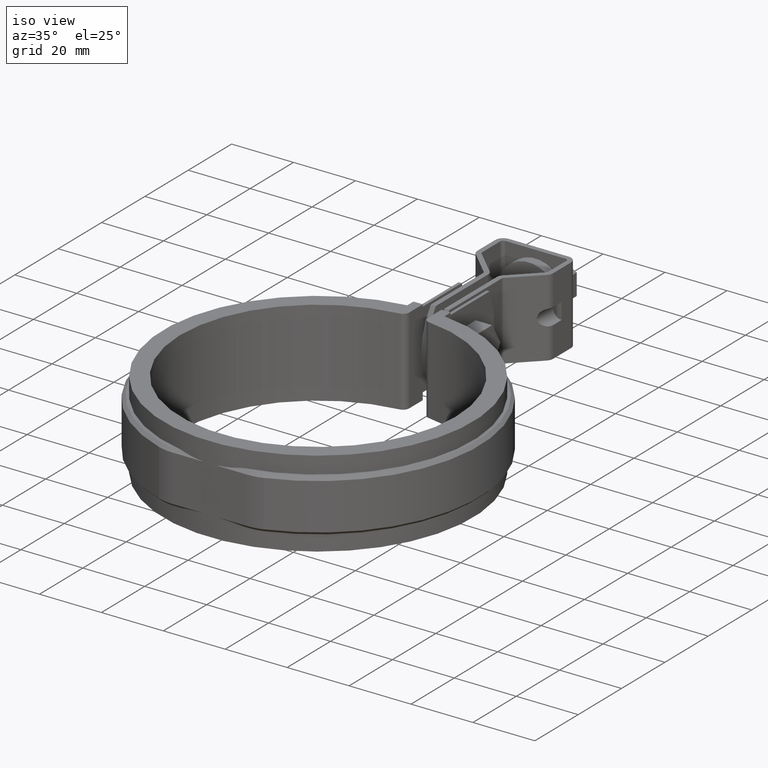
[diagram: clean part render]
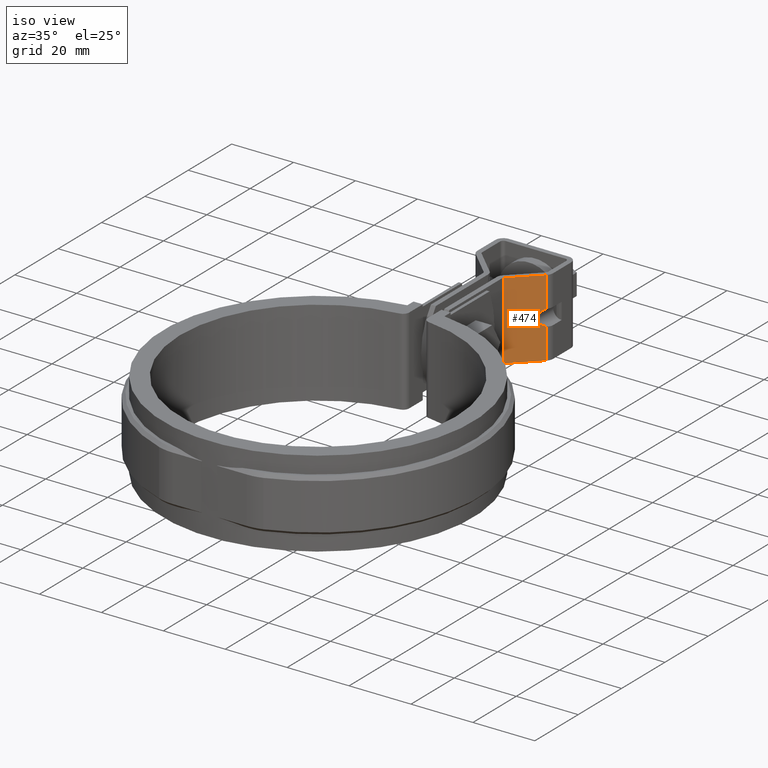
[diagram: same view with one face highlighted and labeled with its STEP entity id]
A machine part, iso view. The second image highlights one B-rep face of the part: STEP entity #474.
In plain terms, the highlighted planar face has unit normal (0.6983, -0.7158, 0).
Its self-contained STEP definition (entity closure, byte-faithful):
#474 = ADVANCED_FACE( '', ( #863 ), #864, .T. );
#863 = FACE_OUTER_BOUND( '', #1879, .T. );
#864 = PLANE( '', #1880 );
#1879 = EDGE_LOOP( '', ( #3960, #3961, #3962, #3963, #3964, #3965 ) );
#1880 = AXIS2_PLACEMENT_3D( '', #3966, #3967, #3968 );
#3960 = ORIENTED_EDGE( '', *, *, #4796, .T. );
#3961 = ORIENTED_EDGE( '', *, *, #4802, .F. );
#3962 = ORIENTED_EDGE( '', *, *, #4709, .T. );
#3963 = ORIENTED_EDGE( '', *, *, #4728, .F. );
#3964 = ORIENTED_EDGE( '', *, *, #4688, .F. );
#3965 = ORIENTED_EDGE( '', *, *, #4803, .F. );
#3966 = CARTESIAN_POINT( '', ( 3.90167616437032, 81.6516822966422, 12.4999999943156 ) );
#3967 = DIRECTION( '', ( 0.698323835531320, -0.715781964517705, 3.41092840061489E-011 ) );
#3968 = DIRECTION( '', ( -0.715781964517705, -0.698323835531320, 3.26011656361547E-011 ) );
#4688 = EDGE_CURVE( '', #5506, #5508, #5509, .T. );
#4709 = EDGE_CURVE( '', #5546, #5547, #5548, .T. );
#4728 = EDGE_CURVE( '', #5508, #5547, #5579, .T. );
#4796 = EDGE_CURVE( '', #5686, #5684, #5687, .T. );
#4802 = EDGE_CURVE( '', #5546, #5684, #5694, .T. );
#4803 = EDGE_CURVE( '', #5686, #5506, #5695, .T. );
#5506 = VERTEX_POINT( '', #8355 );
#5508 = VERTEX_POINT( '', #8357 );
#5509 = LINE( '', #8358, #8359 );
#5546 = VERTEX_POINT( '', #8407 );
#5547 = VERTEX_POINT( '', #8408 );
#5548 = ELLIPSE( '', #8409, 3.70224472166266, 2.64999999999997 );
#5579 = LINE( '', #8475, #8476 );
#5684 = VERTEX_POINT( '', #8649 );
#5686 = VERTEX_POINT( '', #8651 );
#5687 = LINE( '', #8652, #8653 );
#5694 = LINE( '', #8663, #8664 );
#5695 = LINE( '', #8665, #8666 );
#8355 = CARTESIAN_POINT( '', ( 3.30167616437099, 81.0663164700519, 12.4999999943429 ) );
#8357 = CARTESIAN_POINT( '', ( 11.4656419722716, 89.0311607923885, 12.4999999939711 ) );
#8358 = CARTESIAN_POINT( '', ( 3.90167616437032, 81.6516822966422, 12.4999999943156 ) );
#8359 = VECTOR( '', #9407, 1000.00000000000 );
#8407 = CARTESIAN_POINT( '', ( 11.4656419722789, 89.0311607916792, -2.53126105232718 ) );
#8408 = CARTESIAN_POINT( '', ( 11.4656419722765, 89.0311607919181, 2.53126104026929 ) );
#8409 = AXIS2_PLACEMENT_3D( '', #9446, #9447, #9448 );
#8475 = CARTESIAN_POINT( '', ( 11.4656419722716, 89.0311607923885, 12.4999999939711 ) );
#8476 = VECTOR( '', #9473, 1000.00000000000 );
#8649 = CARTESIAN_POINT( '', ( 11.4656419722837, 89.0311607912089, -12.5000000060289 ) );
#8651 = CARTESIAN_POINT( '', ( 3.30167616438309, 81.0663164688723, -12.5000000056571 ) );
#8652 = CARTESIAN_POINT( '', ( 3.90167616438242, 81.6516822954626, -12.5000000056844 ) );
#8653 = VECTOR( '', #9579, 1000.00000000000 );
#8663 = CARTESIAN_POINT( '', ( 11.4656419722716, 89.0311607923885, 12.4999999939711 ) );
#8664 = VECTOR( '', #9589, 1000.00000000000 );
#8665 = CARTESIAN_POINT( '', ( 3.30167616437099, 81.0663164700519, 12.4999999943429 ) );
#8666 = VECTOR( '', #9590, 1000.00000000000 );
#9407 = DIRECTION( '', ( 0.715781964517702, 0.698323835531324, -3.26011656361549E-011 ) );
#9446 = CARTESIAN_POINT( '', ( 12.2499999998975, 89.7963881004335, -6.06466266095396E-009 ) );
#9447 = DIRECTION( '', ( -0.698323835531319, 0.715781964517707, -3.41093191085967E-011 ) );
#9448 = DIRECTION( '', ( 0.715781964517707, 0.698323835531319, -3.26011296561440E-011 ) );
#9473 = DIRECTION( '', ( 4.83999649787072E-013, -4.71809813440451E-011, -1.00000000000000 ) );
#9579 = DIRECTION( '', ( 0.715781964517702, 0.698323835531324, -3.26011656361549E-011 ) );
#9589 = DIRECTION( '', ( 4.83999649787072E-013, -4.71809813440451E-011, -1.00000000000000 ) );
#9590 = DIRECTION( '', ( -4.84060880104763E-013, 4.71809216071525E-011, 1.00000000000000 ) );